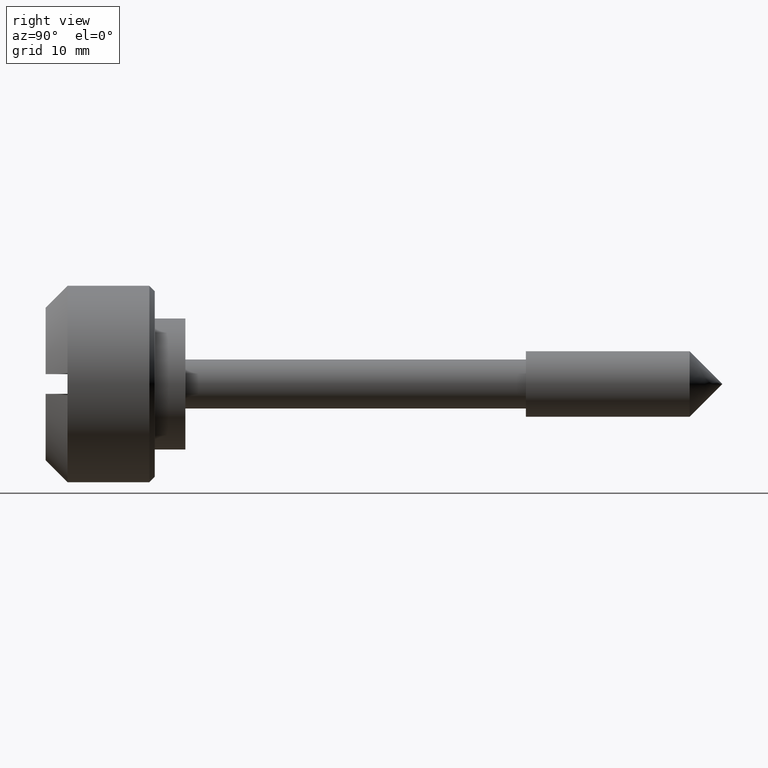
[diagram: clean part render]
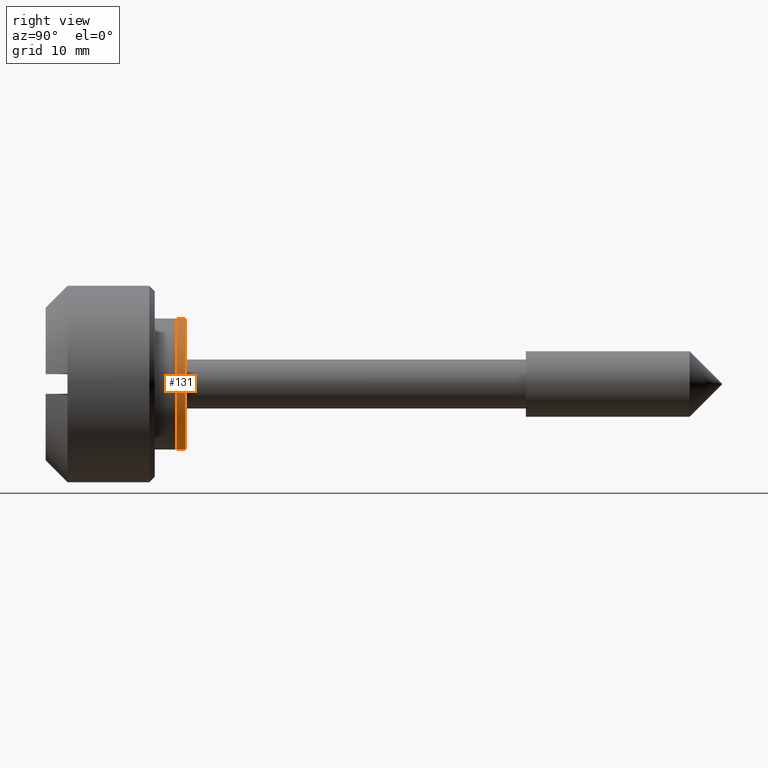
[diagram: same view with one face highlighted and labeled with its STEP entity id]
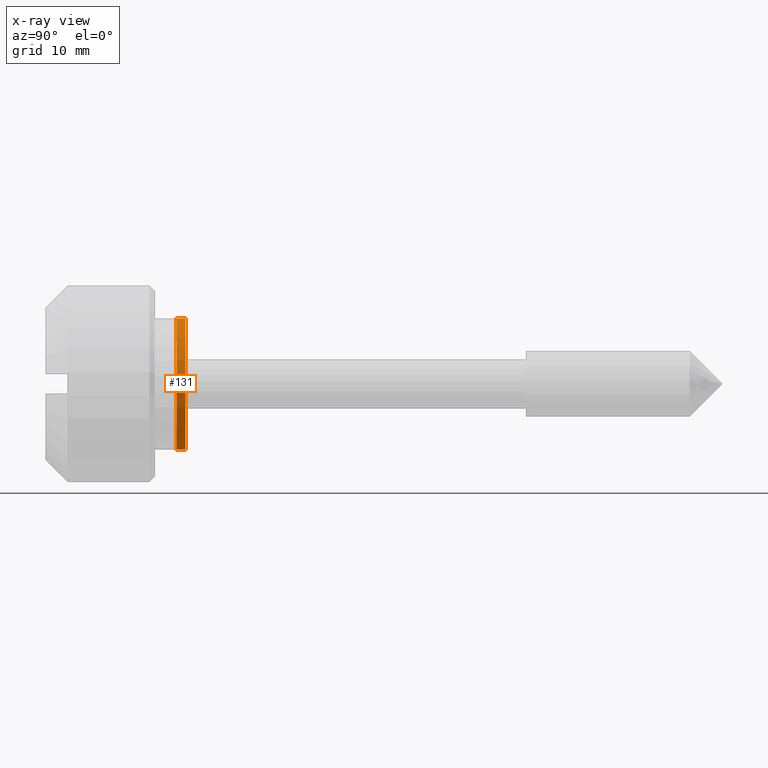
[diagram: x-ray of the same camera — body ghosted, the highlighted face saturated]
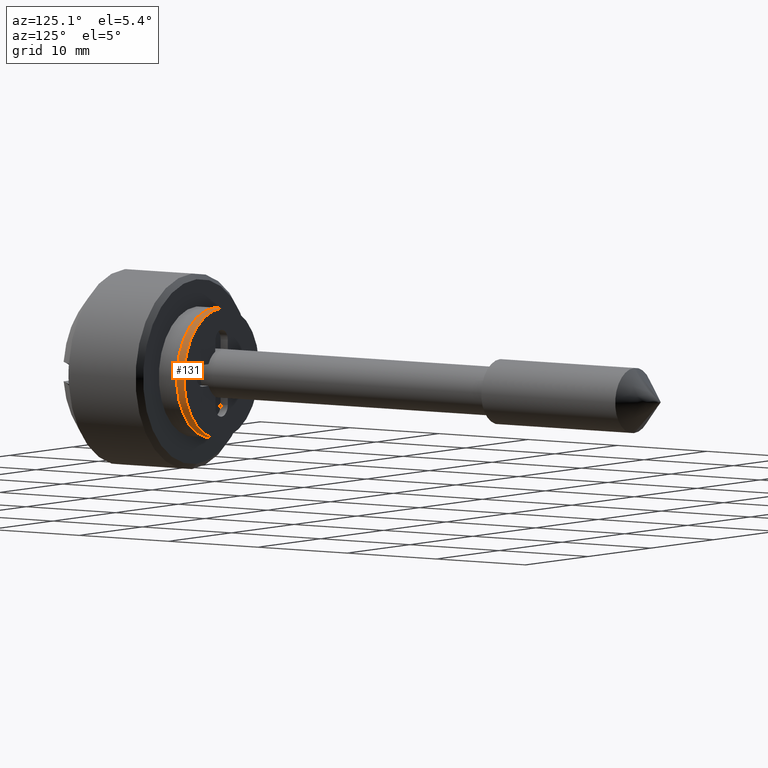
[diagram: same view with one face highlighted and labeled with its STEP entity id]
A machine part, right view. The second image highlights one B-rep face of the part: STEP entity #131.
The next image is the same camera in x-ray: the body ghosted, the highlighted face saturated — about 0% of this face is hidden behind the body in this view.
A second angle (auxiliary view) of the same face is appended — the face is thin or edge-on in the first view.
In plain terms, the highlighted cylindrical surface (partial cylindrical patch) has radius 6 mm, axis along (0, 1, 0).
Its self-contained STEP definition (entity closure, byte-faithful):
#131=ADVANCED_FACE('',(#347),#346,.T.);
#346=CYLINDRICAL_SURFACE('',#679,6.00000000000E+00);
#347=FACE_OUTER_BOUND('',#680,.T.);
#676=CARTESIAN_POINT('',(0.00000000000E+00,1.00000000000E+03,0.00000000000E+00));
#677=DIRECTION('',(-0.00000000000E+00,1.00000000000E+00,-0.00000000000E+00));
#678=DIRECTION('',(1.22464679915E-16,0.00000000000E+00,-1.00000000000E+00));
#679=AXIS2_PLACEMENT_3D('',#676,#677,#678);
#680=EDGE_LOOP('',(#934,#935,#936,#937));
#934=ORIENTED_EDGE('',*,*,#1081,.F.);
#935=ORIENTED_EDGE('',*,*,#1082,.T.);
#936=ORIENTED_EDGE('',*,*,#1040,.T.);
#937=ORIENTED_EDGE('',*,*,#1083,.F.);
#1040=EDGE_CURVE('',#1198,#1199,#1200,.T.);
#1081=EDGE_CURVE('',#1465,#1464,#1472,.T.);
#1082=EDGE_CURVE('',#1465,#1198,#1478,.T.);
#1083=EDGE_CURVE('',#1464,#1199,#1484,.T.);
#1198=VERTEX_POINT('',#1835);
#1199=VERTEX_POINT('',#1836);
#1200=CIRCLE('',#1840,6.00000000000E+00);
#1464=VERTEX_POINT('',#1997);
#1465=VERTEX_POINT('',#1998);
#1472=CIRCLE('',#2006,6.00000000000E+00);
#1478=(BOUNDED_CURVE() B_SPLINE_CURVE(1,(#2007,#2008),.UNSPECIFIED.,.F.,.F.) B_SPLINE_CURVE_WITH_KNOTS((2,2),(8.33332935974E-02,9.16666633252E-01),.UNSPECIFIED.) CURVE() GEOMETRIC_REPRESENTATION_ITEM() RATIONAL_B_SPLINE_CURVE((1.00000000000E+00,1.00000000000E+00)) REPRESENTATION_ITEM('') );
#1484=(BOUNDED_CURVE() B_SPLINE_CURVE(1,(#2009,#2010),.UNSPECIFIED.,.F.,.F.) B_SPLINE_CURVE_WITH_KNOTS((2,2),(8.33333333334E-02,9.16666666667E-01),.UNSPECIFIED.) CURVE() GEOMETRIC_REPRESENTATION_ITEM() RATIONAL_B_SPLINE_CURVE((7.50000000000E-01,7.50000000000E-01)) REPRESENTATION_ITEM('') );
#1835=CARTESIAN_POINT('',(1.18423789293E-15,8.00000000000E-01,-6.00000000000E+00));
#1836=CARTESIAN_POINT('',(0.00000000000E+00,8.00000000000E-01,6.00000000000E+00));
#1837=CARTESIAN_POINT('',(0.00000000000E+00,8.00000000000E-01,0.00000000000E+00));
#1838=DIRECTION('',(-0.00000000000E+00,-1.00000000000E+00,0.00000000000E+00));
#1839=DIRECTION('',(-1.22460635382E-16,0.00000000000E+00,1.00000000000E+00));
#1840=AXIS2_PLACEMENT_3D('',#1837,#1838,#1839);
#1997=CARTESIAN_POINT('',(0.00000000000E+00,0.00000000000E+00,6.00000000000E+00));
#1998=CARTESIAN_POINT('',(1.18423789293E-15,0.00000000000E+00,-6.00000000000E+00));
#2003=CARTESIAN_POINT('',(0.00000000000E+00,0.00000000000E+00,0.00000000000E+00));
#2004=DIRECTION('',(-0.00000000000E+00,-1.00000000000E+00,0.00000000000E+00));
#2005=DIRECTION('',(-1.22460635382E-16,0.00000000000E+00,1.00000000000E+00));
#2006=AXIS2_PLACEMENT_3D('',#2003,#2004,#2005);
#2007=CARTESIAN_POINT('',(7.34788079488E-16,-3.81465210669E-08,-6.00000000000E+00));
#2008=CARTESIAN_POINT('',(7.34788079488E-16,7.99999967922E-01,-6.00000000000E+00));
#2009=CARTESIAN_POINT('',(0.00000000000E+00,0.00000000000E+00,6.00000000000E+00));
#2010=CARTESIAN_POINT('',(0.00000000000E+00,8.00000000000E-01,6.00000000000E+00));